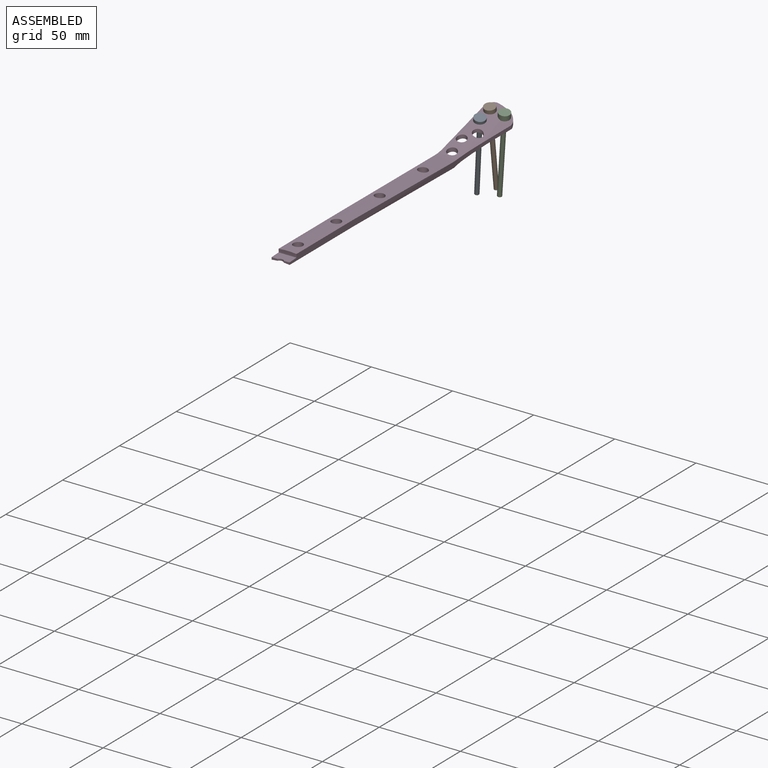
[diagram: assembled view]
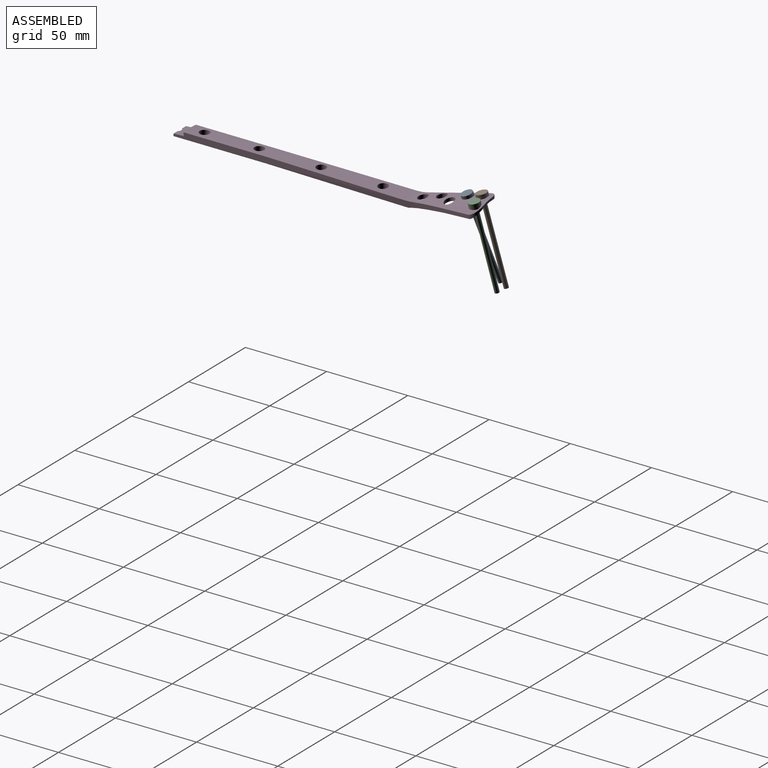
[diagram: assembled view, second angle]
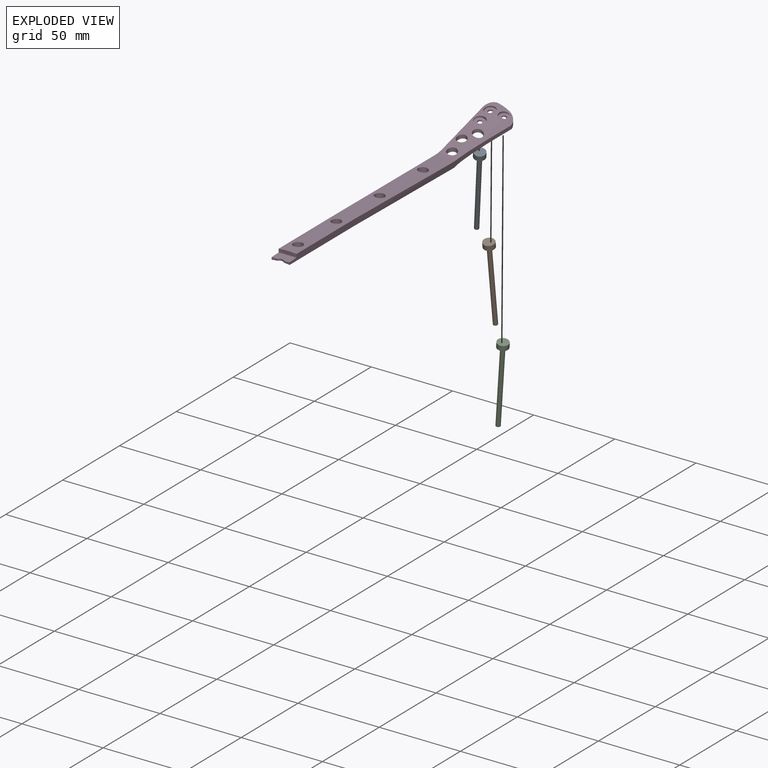
[diagram: exploded view]
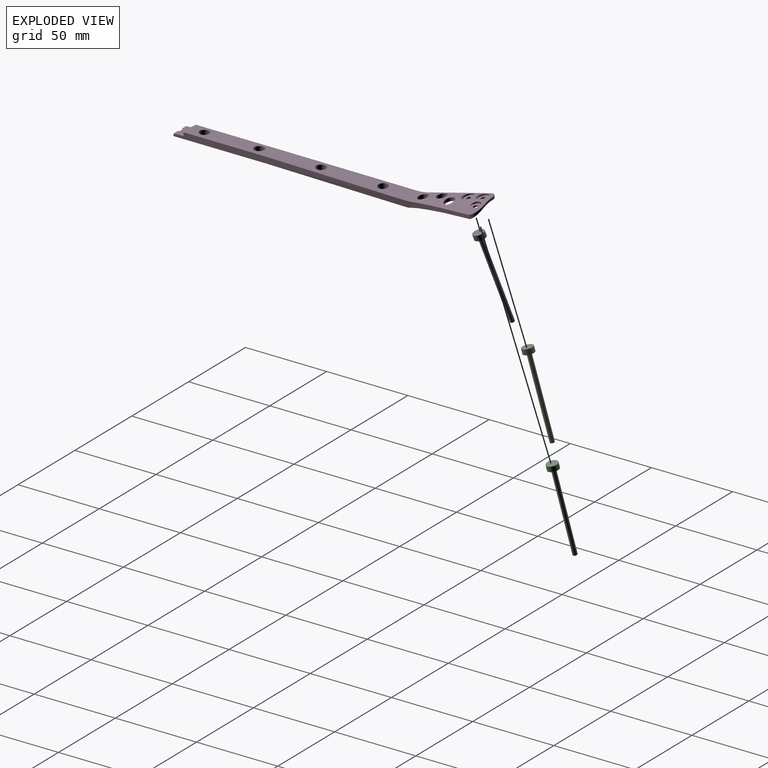
[diagram: exploded view, second angle]
ASSEMBLY  parts=4 mates=6
PART A: 5 faces, bbox 6.8x6.8x53.2 mm
  f0: cylinder r=1.35mm len=50mm, axis (0,0,-1), area 424.1mm2, adj f1,f4
  f1: plane 2.7x2.7mm, normal (0,0,1), area 5.7mm2, adj f0
  f2: cylinder r=3.4mm len=6.8mm, axis (0,0,1), area 68.4mm2, adj f3,f4
  f3: plane 6.8x6.8mm, normal (0,0,-1), area 36.3mm2, adj f2
  f4: plane 6.8x6.8mm, normal (0,0,1), area 30.6mm2, adj f0,f2
PART B: same geometry as A
PART C: same geometry as A
PART D: 39 faces, bbox 22x230.9x23.2 mm
  f0: bspline ~44.9x18.94mm, area 485.4mm2, adj f1,f26,f27,f28,f29,f30,f31,f32
  f1: cylinder r=1.35mm len=2.93mm, axis (0.16,-0.15,0.97), area 9.6mm2, adj f0,f2,f26
  f2: cylinder r=17.5mm len=52mm, axis (0.03,0.97,0.26), area 647.8mm2, adj f1,f3,f5,f7,f8,f23,f24,f25
  f3: cylinder r=1.35mm len=2.85mm, axis (0.08,-0.23,0.97), area 8.1mm2, adj f2,f4
  f4: plane 6.78x6.62mm, normal (0.08,-0.23,0.97), area 30.6mm2, adj f3,f28
  f5: cylinder r=1.35mm len=2.86mm, axis (0.21,-0.25,0.95), area 5.9mm2, adj f2,f6
  f6: plane 6.65x6.59mm, normal (0.21,-0.25,0.95), area 30.6mm2, adj f5,f38
  f7: bspline ~6.36x1.97mm, area 0.4mm2, adj f2,f8,f25
  f8: bspline ~172.41x11.03mm, area 882.7mm2, adj f2,f7,f9,f21,f22,f23,f25
  f9: cylinder r=38.12mm len=56.95mm, axis (0,1,0), area 572mm2, adj f8,f10,f15,f16,f17,f18,f19,f20
  f10: cylinder r=2.5mm len=4mm, axis (0,0,1), area 4.9mm2, adj f9,f11,f15,f18
  f11: plane 11.1x6.29mm, normal (0,-0.05,1), area 65.4mm2, adj f10,f12,f15,f16,f17,f18
  f12: cylinder r=12.5mm len=11mm, axis (1,0,0), area 22.7mm2, adj f11,f13,f16,f17
  f13: cylinder r=41.85mm len=50.83mm, axis (0,1,0), area 504.2mm2, adj f12,f14,f16,f17,f19,f20
  f14: bspline ~86.21x11.4mm, area 890.7mm2, adj f13,f21,f22,f23,f25,f37
  f15: plane 3.5x1.4mm, normal (0,-1,0), area 4.2mm2, adj f9,f10,f11,f16
  f16: plane 56.95x3.76mm, normal (-1,0,0), area 200.5mm2, adj f9,f11,f12,f13,f15,f23
  f17: plane 56.95x3.76mm, normal (1,0,0), area 200.5mm2, adj f9,f11,f12,f13,f18,f25
  f18: plane 3.5x1.4mm, normal (0,-1,0), area 4.2mm2, adj f9,f10,f11,f17
  f19: cylinder r=3mm len=6mm, axis (0,0,-1), area 70.2mm2, adj f9,f13
  f20: cylinder r=3mm len=6mm, axis (0,0,-1), area 70.2mm2, adj f9,f13
  f21: cylinder r=3mm len=6mm, axis (0,0,-1), area 70.5mm2, adj f8,f14
  f22: cylinder r=3mm len=6mm, axis (0,0,-1), area 70.3mm2, adj f8,f14
  f23: bspline ~172.41x4mm, area 334.1mm2, adj f2,f8,f14,f16,f31,f37
  f24: plane 2.43x0.06mm, normal (-0.23,0.97,0), area 0.1mm2, adj f2,f31,f32
  f25: bspline ~172.41x6.34mm, area 336mm2, adj f2,f7,f8,f14,f17,f35,f37
  f26: plane 8.3x6.74mm, normal (0.16,-0.15,0.97), area 19.8mm2, adj f0,f1,f27
  f27: cylinder r=3.4mm len=6.72mm, axis (0.16,-0.15,0.97), area 0mm2, adj f0,f26
  f28: cylinder r=3.4mm len=6.85mm, axis (0.08,-0.23,0.97), area 18.5mm2, adj f0,f4
  f29: cylinder r=3mm len=6mm, axis (0,0,-1), area 39.3mm2, adj f0,f2
  f30: cylinder r=3mm len=6mm, axis (0,0,-1), area 46mm2, adj f0,f2
  f31: bspline ~49.22x15.89mm, area 104.3mm2, adj f0,f2,f23,f24,f37
  f32: cylinder r=5.35mm len=5.82mm, axis (0,0,-1), area 17.9mm2, adj f0,f2,f24,f33
  f33: plane 7.07x3.79mm, normal (0.09,1,0), area 10.1mm2, adj f0,f2,f32,f34
  f34: cylinder r=5.35mm len=6.76mm, axis (0,0,-1), area 17.8mm2, adj f0,f2,f33,f35
  f35: bspline ~50.24x11.1mm, area 105.8mm2, adj f0,f2,f25,f34,f37
  f36: cylinder r=3mm len=6mm, axis (0,0,-1), area 49.6mm2, adj f0,f2,f37
  f37: bspline ~13.06x6.34mm, area 61.4mm2, adj f0,f14,f23,f25,f31,f35,f36
  f38: cylinder r=3.4mm len=6.94mm, axis (0.21,-0.25,0.95), area 23.4mm2, adj f0,f6
PLACE A rot(axis=(-0.99,-0.01,0.11),165.5deg) t=(-1.25,161.71,9.93)mm
PLACE B rot(axis=(-1,0,0.04),166.7deg) t=(-1.13,170.57,12.43)mm
PLACE C rot(axis=(-1,-0.01,0.08),171.2deg) t=(6.9,171.54,10.97)mm
PLACE D t=(0,41.62,2.02)mm
MATE planar D.f26 <-> C.f2  axis (0.16,-0.15,0.97) through (5.83,171.8,11.19)mm
MATE slider D.f3 <-> B.f0  axis (0.08,-0.23,0.97) through (-1.13,170.57,12.43)mm
MATE planar B.f2 <-> D.f3  axis (-0.08,0.23,-0.97) through (-1.13,170.57,12.43)mm
MATE slider C.f0 <-> D.f27  axis (0.16,-0.15,0.97) through (6.9,171.54,10.97)mm
MATE planar D.f5 <-> A.f2  axis (0.21,-0.25,0.95) through (-1.25,161.71,9.93)mm
MATE slider A.f0 <-> D.f5  axis (0.21,-0.25,0.95) through (-1.25,161.71,9.93)mm
